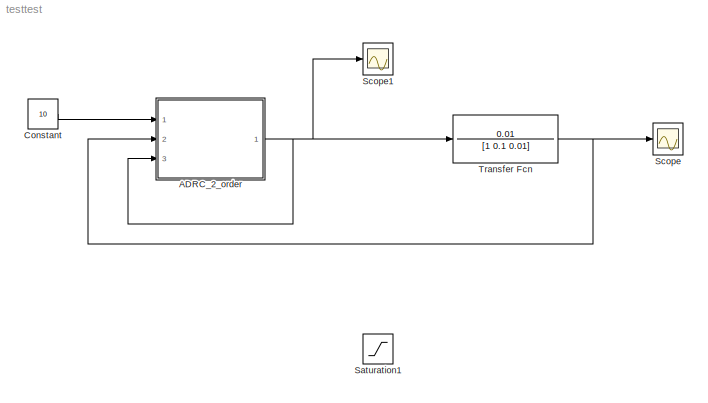
MODEL testtest
KIND model
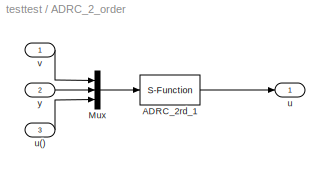
BLOCK [SubSystem] ADRC_2_order
  AncestorBlock = ADRC/ADRC/ADRC_2rd/ADRC_2_order
  FunctionWithSeparateData = off
  MaskCallbackString = ||||
  MaskEnableString = on,on,on,on,on
  MaskHideContents = off
  MaskIconFrame = on
  MaskIconOpaque = on
  MaskIconRotate = none
  MaskIconUnits = autoscale
  MaskPortRotate = default
  MaskPromptString = h=|TD[r0,h]=|ESO[B01,B02,B03,D]=|NLSEF[c,r1,h1]=|b0=
  MaskStyleString = edit,edit,edit,edit,edit
  MaskToolTipString = on,on,on,on,on
  MaskTunableValueString = on,on,on,on,on
  MaskValueString = 0.1|[0.1,0.1]|[10,30,25,0.1]|[0.1,2,0.2]|1
  MaskVariables = h=@1;TD=@2;ESO=@3;NLSEF=@4;b0=@5;
  MaskVisibilityString = on,on,on,on,on
  MinAlgLoopOccurrences = off
  Opaque = off
  Ports = [3, 1]
  PropExecContextOutsideSubsystem = off
  RTWSystemCode = Auto
  RequestExecContextInheritance = off
  SID = 1
BLOCK [S-Function] ADRC_2_order/ADRC_2rd_1
  EnableBusSupport = off
  FunctionName = ADRC_2
  Parameters = h,TD,ESO,NLSEF,b0
  Ports = [1, 1]
  SID = 1:62
BLOCK [Mux] ADRC_2_order/Mux
  DisplayOption = bar
  Inputs = 3
  Ports = [3, 1]
  SID = 1:144
BLOCK [Outport] ADRC_2_order/u
  IconDisplay = Port number
  SID = 1:141
BLOCK [Inport] ADRC_2_order/u()
  IconDisplay = Port number
  Port = 3
  SID = 1:145
BLOCK [Inport] ADRC_2_order/v
  IconDisplay = Port number
  SID = 1:142
BLOCK [Inport] ADRC_2_order/y
  IconDisplay = Port number
  Port = 2
  SID = 1:143
BLOCK [Constant] Constant
  SID = 3
  Value = 10
BLOCK [Saturate] Saturation1
  InputPortMap = u0
  LowerLimit = 0
  Ports = [1, 1]
  SID = 19
  UpperLimit = 100
BLOCK [Scope] Scope
  DataFormat = Array
  Floating = off
  NumInputPorts = 1
  Ports = [1]
  SID = 4
  SampleTime = 0
  SaveToWorkspace = on
  YMax = 10.25
  YMin = 5.25
BLOCK [Scope] Scope1
  DataFormat = Array
  Floating = off
  NumInputPorts = 1
  Ports = [1]
  SID = 5
  SampleTime = 0
  SaveName = ScopeData1
  SaveToWorkspace = on
  TimeRange = 50
  YMax = 250
  YMin = 0
BLOCK [TransferFcn] Transfer Fcn
  Denominator = [1 0.1 0.01]
  Numerator = 0.01
  SID = 2
LINE ADRC_2_order/ADRC_2rd_1:1 -> ADRC_2_order/u:1
LINE ADRC_2_order/Mux:1 -> ADRC_2_order/ADRC_2rd_1:1
LINE ADRC_2_order/u():1 -> ADRC_2_order/Mux:3
LINE ADRC_2_order/v:1 -> ADRC_2_order/Mux:1
LINE ADRC_2_order/y:1 -> ADRC_2_order/Mux:2
NET ADRC_2_order:1 -> ADRC_2_order:3, Scope1:1, Transfer Fcn:1
LINE Constant:1 -> ADRC_2_order:1
NET Transfer Fcn:1 -> ADRC_2_order:2, Scope:1
note: NET lines group one-source signal fan-out (src -> all destinations, sorted); 1:1 wires keep LINE
